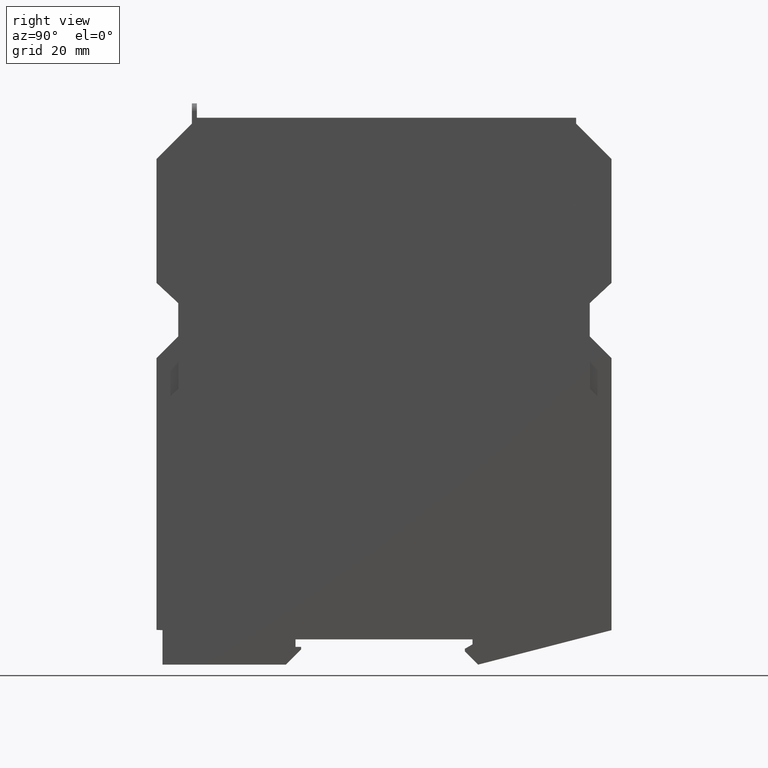
[diagram: clean part render]
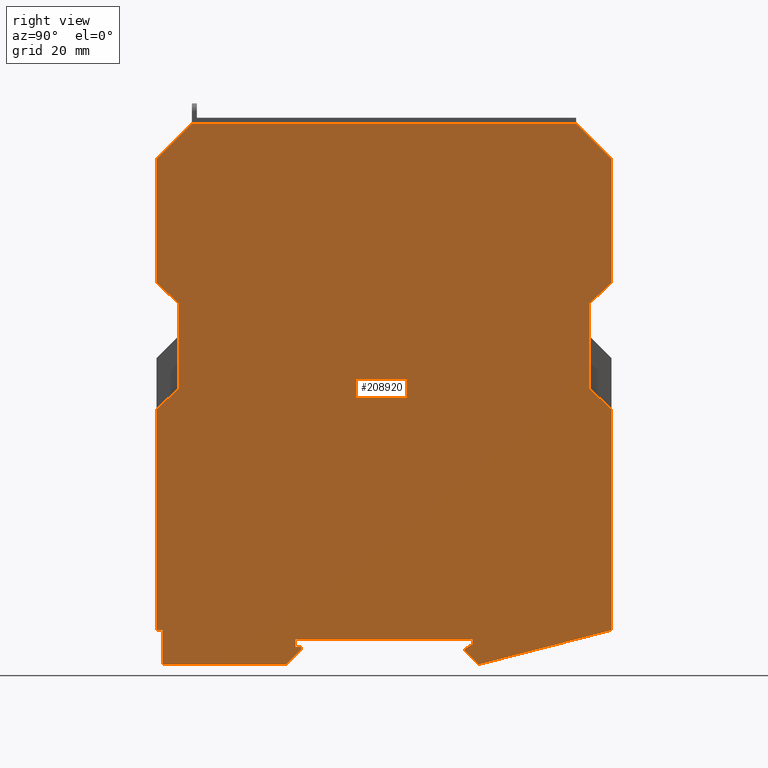
[diagram: same view with one face highlighted and labeled with its STEP entity id]
A machine part, right view. The second image highlights one B-rep face of the part: STEP entity #208920.
In plain terms, the highlighted planar face has unit normal (1, 0, 0).
Its self-contained STEP definition (entity closure, byte-faithful):
#36430=CARTESIAN_POINT('',(11.3106006933362,41.8487639465201,
131.000000000001));
#36440=VERTEX_POINT('',#36430);
#36470=CARTESIAN_POINT('',(11.3106006933362,41.8487639465201,0.));
#36480=DIRECTION('',(0.,0.,1.));
#36490=VECTOR('',#36480,1.);
#36500=LINE('',#36470,#36490);
#36510=CARTESIAN_POINT('',(11.3106006933362,41.8487639465201,
155.500000000001));
#36520=VERTEX_POINT('',#36510);
#36530=EDGE_CURVE('',#36440,#36520,#36500,.T.);
#39930=CARTESIAN_POINT('',(11.3106006933362,37.54876394652,
127.000000000001));
#39940=VERTEX_POINT('',#39930);
#39970=CARTESIAN_POINT('',(11.3106006933362,0.,92.0709172590523));
#39980=DIRECTION('',(0.,0.732186738163083,0.681103942477288));
#39990=VECTOR('',#39980,1.);
#40000=LINE('',#39970,#39990);
#40010=EDGE_CURVE('',#39940,#36440,#40000,.T.);
#45550=CARTESIAN_POINT('',(11.3106006933362,-48.15123605348,
155.499999999925));
#45560=VERTEX_POINT('',#45550);
#45590=CARTESIAN_POINT('',(11.3106006933362,-48.15123605348,0.));
#45600=DIRECTION('',(0.,0.,-1.));
#45610=VECTOR('',#45600,1.);
#45620=LINE('',#45590,#45610);
#45630=CARTESIAN_POINT('',(11.3106006933362,-48.15123605348,
131.000000000001));
#45640=VERTEX_POINT('',#45630);
#45650=EDGE_CURVE('',#45560,#45640,#45620,.T.);
#49320=CARTESIAN_POINT('',(11.3106006933362,-46.9512360534802,
55.5000000000012));
#49330=VERTEX_POINT('',#49320);
#49360=CARTESIAN_POINT('',(11.3106006933362,0.,55.5000000000012));
#49370=DIRECTION('',(0.,1.,0.));
#49380=VECTOR('',#49370,1.);
#49390=LINE('',#49360,#49380);
#49400=CARTESIAN_POINT('',(11.3106006933362,-22.5512360534807,
55.5000000000012));
#49410=VERTEX_POINT('',#49400);
#49420=EDGE_CURVE('',#49330,#49410,#49390,.T.);
#51800=CARTESIAN_POINT('',(11.3106006933362,-46.9512360534802,
62.3039651198429));
#51810=VERTEX_POINT('',#51800);
#51840=CARTESIAN_POINT('',(11.3106006933362,-46.9512360534802,0.));
#51850=DIRECTION('',(0.,0.,-1.));
#51860=VECTOR('',#51850,1.);
#51870=LINE('',#51840,#51860);
#51880=EDGE_CURVE('',#51810,#49330,#51870,.T.);
#54640=CARTESIAN_POINT('',(11.3106006933362,-20.6512360534807,
59.0000000000012));
#54650=VERTEX_POINT('',#54640);
#54680=CARTESIAN_POINT('',(11.3106006933362,-20.6512360534807,0.));
#54690=DIRECTION('',(0.,0.,1.));
#54700=VECTOR('',#54690,1.);
#54710=LINE('',#54680,#54700);
#54720=CARTESIAN_POINT('',(11.3106006933362,-20.6512360534807,
60.5000000000012));
#54730=VERTEX_POINT('',#54720);
#54740=EDGE_CURVE('',#54650,#54730,#54710,.T.);
#55020=CARTESIAN_POINT('',(11.3106006933362,-19.5512360534807,
59.0000000000012));
#55030=VERTEX_POINT('',#55020);
#55060=CARTESIAN_POINT('',(11.3106006933362,0.,59.0000000000012));
#55070=DIRECTION('',(0.,-1.,0.));
#55080=VECTOR('',#55070,1.);
#55090=LINE('',#55060,#55080);
#55100=EDGE_CURVE('',#55030,#54650,#55090,.T.);
#55330=CARTESIAN_POINT('',(11.3106006933362,12.84876394652,
58.6339745962167));
#55340=VERTEX_POINT('',#55330);
#55370=CARTESIAN_POINT('',(11.3106006933362,12.8487639465204,0.));
#55380=DIRECTION('',(0.,6.93889390391374E-15,-1.));
#55390=VECTOR('',#55380,1.);
#55400=LINE('',#55370,#55390);
#55410=CARTESIAN_POINT('',(11.3106006933362,12.84876394652,
58.1339745962172));
#55420=VERTEX_POINT('',#55410);
#55430=EDGE_CURVE('',#55340,#55420,#55400,.T.);
#55710=CARTESIAN_POINT('',(11.3106006933362,14.34876394652,
59.5000000000012));
#55720=VERTEX_POINT('',#55710);
#55750=CARTESIAN_POINT('',(11.3106006933362,0.,51.2157372729391));
#55760=DIRECTION('',(0.,-0.866025403784429,-0.500000000000017));
#55770=VECTOR('',#55760,1.);
#55780=LINE('',#55750,#55770);
#55790=EDGE_CURVE('',#55720,#55340,#55780,.T.);
#58290=CARTESIAN_POINT('',(11.3106006933362,41.84876394652,
62.3072887580302));
#58300=VERTEX_POINT('',#58290);
#58330=CARTESIAN_POINT('',(11.3106006933362,41.8487639465178,0.));
#58340=DIRECTION('',(0.,3.54716256367738E-14,1.));
#58350=VECTOR('',#58340,1.);
#58360=LINE('',#58330,#58350);
#58370=CARTESIAN_POINT('',(11.3106006933362,41.8487639465232,
105.999999999998));
#58380=VERTEX_POINT('',#58370);
#58390=EDGE_CURVE('',#58300,#58380,#58360,.T.);
#87120=CARTESIAN_POINT('',(11.3106006933362,70.9827385427369,0.));
#87130=DIRECTION('',(0.,0.707106781186545,-0.70710678118655));
#87140=VECTOR('',#87130,1.);
#87150=LINE('',#87120,#87140);
#87160=CARTESIAN_POINT('',(11.3106006933362,15.4827385427368,
55.5000000000004));
#87170=VERTEX_POINT('',#87160);
#87180=EDGE_CURVE('',#55420,#87170,#87150,.T.);
#87430=CARTESIAN_POINT('',(11.3106006933362,0.,51.5026029554552));
#87440=DIRECTION('',(0.,0.96824930087528,0.249986582348995));
#87450=VECTOR('',#87440,1.);
#87460=LINE('',#87430,#87450);
#87470=EDGE_CURVE('',#87170,#58300,#87460,.T.);
#87670=CARTESIAN_POINT('',(11.3106006933362,0.,60.5000000000012));
#87680=DIRECTION('',(0.,1.,0.));
#87690=VECTOR('',#87680,1.);
#87700=LINE('',#87670,#87690);
#87710=CARTESIAN_POINT('',(11.3106006933362,14.34876394652,
60.5000000000012));
#87720=VERTEX_POINT('',#87710);
#87730=EDGE_CURVE('',#54730,#87720,#87700,.T.);
#87980=CARTESIAN_POINT('',(11.3106006933362,14.34876394652,0.));
#87990=DIRECTION('',(0.,0.,-1.));
#88000=VECTOR('',#87990,1.);
#88010=LINE('',#87980,#88000);
#88020=EDGE_CURVE('',#87720,#55720,#88010,.T.);
#88220=CARTESIAN_POINT('',(11.3106006933362,-78.0512360534819,0.));
#88230=DIRECTION('',(0.,0.707106781186547,0.707106781186548));
#88240=VECTOR('',#88230,1.);
#88250=LINE('',#88220,#88240);
#88260=CARTESIAN_POINT('',(11.3106006933362,-19.5512360534807,
58.5000000000012));
#88270=VERTEX_POINT('',#88260);
#88280=EDGE_CURVE('',#49410,#88270,#88250,.T.);
#88530=CARTESIAN_POINT('',(11.3106006933362,-19.5512360534809,0.));
#88540=DIRECTION('',(0.,3.5527136788005E-15,1.));
#88550=VECTOR('',#88540,1.);
#88560=LINE('',#88530,#88550);
#88570=EDGE_CURVE('',#88270,#55030,#88560,.T.);
#91430=CARTESIAN_POINT('',(11.3106006933362,-48.1512360534815,106.));
#91440=VERTEX_POINT('',#91430);
#91470=CARTESIAN_POINT('',(11.3106006933362,-48.1512360534778,0.));
#91480=DIRECTION('',(0.,3.54716256367738E-14,-1.));
#91490=VECTOR('',#91480,1.);
#91500=LINE('',#91470,#91490);
#91510=CARTESIAN_POINT('',(11.3106006933362,-48.15123605348,
62.3668544549825));
#91520=VERTEX_POINT('',#91510);
#91530=EDGE_CURVE('',#91440,#91520,#91500,.T.);
#120430=CARTESIAN_POINT('',(11.3106006933362,0.,59.8433551036863));
#120440=DIRECTION('',(0.,0.998629534754574,-0.0523359562429391));
#120450=VECTOR('',#120440,1.);
#120460=LINE('',#120430,#120450);
#120470=EDGE_CURVE('',#91520,#51810,#120460,.T.);
#155050=CARTESIAN_POINT('',(11.3106006933362,-43.85123605348,
110.000000000001));
#155060=VERTEX_POINT('',#155050);
#155090=CARTESIAN_POINT('',(11.3106006933362,0.,150.79184749161));
#155100=DIRECTION('',(0.,-0.732186738163085,-0.681103942477286));
#155110=VECTOR('',#155100,1.);
#155120=LINE('',#155090,#155110);
#155130=EDGE_CURVE('',#155060,#91440,#155120,.T.);
#155360=CARTESIAN_POINT('',(11.3106006933362,-43.85123605348,
127.000000000001));
#155370=VERTEX_POINT('',#155360);
#155400=CARTESIAN_POINT('',(11.3106006933362,-43.85123605348,0.));
#155410=DIRECTION('',(0.,0.,-1.));
#155420=VECTOR('',#155410,1.);
#155430=LINE('',#155400,#155420);
#155440=EDGE_CURVE('',#155370,#155060,#155430,.T.);
#197890=CARTESIAN_POINT('',(11.3106006933362,0.,86.2081525083918));
#197900=DIRECTION('',(0.,0.732186738163083,-0.681103942477288));
#197910=VECTOR('',#197900,1.);
#197920=LINE('',#197890,#197910);
#197930=EDGE_CURVE('',#45640,#155370,#197920,.T.);
#198860=CARTESIAN_POINT('',(11.3106006933362,37.54876394652,
110.000000000001));
#198870=VERTEX_POINT('',#198860);
#198900=CARTESIAN_POINT('',(11.3106006933362,37.54876394652,0.));
#198910=DIRECTION('',(0.,0.,1.));
#198920=VECTOR('',#198910,1.);
#198930=LINE('',#198900,#198920);
#198940=EDGE_CURVE('',#198870,#39940,#198930,.T.);
#199280=CARTESIAN_POINT('',(11.3106006933362,0.,144.92908274095));
#199290=DIRECTION('',(0.,-0.732186738163085,0.681103942477286));
#199300=VECTOR('',#199290,1.);
#199310=LINE('',#199280,#199300);
#199320=EDGE_CURVE('',#58380,#198870,#199310,.T.);
#208400=CARTESIAN_POINT('',(11.3106006933362,-41.75123605348,
111.500000000001));
#208410=DIRECTION('',(1.,0.,0.));
#208420=DIRECTION('',(0.,1.,0.));
#208430=AXIS2_PLACEMENT_3D('',#208400,#208410,#208420);
#208440=PLANE('',#208430);
#208450=ORIENTED_EDGE('',*,*,#36530,.T.);
#208460=ORIENTED_EDGE('',*,*,#40010,.T.);
#208470=ORIENTED_EDGE('',*,*,#198940,.T.);
#208480=ORIENTED_EDGE('',*,*,#199320,.T.);
#208490=ORIENTED_EDGE('',*,*,#58390,.T.);
#208500=ORIENTED_EDGE('',*,*,#87470,.T.);
#208510=ORIENTED_EDGE('',*,*,#87180,.T.);
#208520=ORIENTED_EDGE('',*,*,#55430,.T.);
#208530=ORIENTED_EDGE('',*,*,#55790,.T.);
#208540=ORIENTED_EDGE('',*,*,#88020,.T.);
#208550=ORIENTED_EDGE('',*,*,#87730,.T.);
#208560=ORIENTED_EDGE('',*,*,#54740,.T.);
#208570=ORIENTED_EDGE('',*,*,#55100,.T.);
#208580=ORIENTED_EDGE('',*,*,#88570,.T.);
#208590=ORIENTED_EDGE('',*,*,#88280,.T.);
#208600=ORIENTED_EDGE('',*,*,#49420,.T.);
#208610=ORIENTED_EDGE('',*,*,#51880,.T.);
#208620=ORIENTED_EDGE('',*,*,#120470,.T.);
#208630=ORIENTED_EDGE('',*,*,#91530,.T.);
#208640=ORIENTED_EDGE('',*,*,#155130,.T.);
#208650=ORIENTED_EDGE('',*,*,#155440,.T.);
#208660=ORIENTED_EDGE('',*,*,#197930,.T.);
#208670=ORIENTED_EDGE('',*,*,#45650,.T.);
#208680=CARTESIAN_POINT('',(11.3106006933362,-203.651236053404,0.));
#208690=DIRECTION('',(0.,-0.707106781186543,-0.707106781186552));
#208700=VECTOR('',#208690,1.);
#208710=LINE('',#208680,#208700);
#208720=CARTESIAN_POINT('',(11.3106006933362,-41.1512360534042,
162.500000000001));
#208730=VERTEX_POINT('',#208720);
#208740=EDGE_CURVE('',#208730,#45560,#208710,.T.);
#208750=ORIENTED_EDGE('',*,*,#208740,.T.);
#208760=CARTESIAN_POINT('',(11.3106006933362,0.,162.500000000001));
#208770=DIRECTION('',(0.,-1.,0.));
#208780=VECTOR('',#208770,1.);
#208790=LINE('',#208760,#208780);
#208800=CARTESIAN_POINT('',(11.3106006933362,34.8487639465192,
162.500000000002));
#208810=VERTEX_POINT('',#208800);
#208820=EDGE_CURVE('',#208810,#208730,#208790,.T.);
#208830=ORIENTED_EDGE('',*,*,#208820,.T.);
#208840=CARTESIAN_POINT('',(11.3106006933362,0.,197.348763946521));
#208850=DIRECTION('',(0.,-0.70710678118655,0.707106781186545));
#208860=VECTOR('',#208850,1.);
#208870=LINE('',#208840,#208860);
#208880=EDGE_CURVE('',#36520,#208810,#208870,.T.);
#208890=ORIENTED_EDGE('',*,*,#208880,.T.);
#208900=EDGE_LOOP('',(#208890,#208830,#208750,#208670,#208660,#208650,
#208640,#208630,#208620,#208610,#208600,#208590,#208580,#208570,#208560,
#208550,#208540,#208530,#208520,#208510,#208500,#208490,#208480,#208470,
#208460,#208450));
#208910=FACE_OUTER_BOUND('',#208900,.T.);
#208920=ADVANCED_FACE('',(#208910),#208440,.T.);